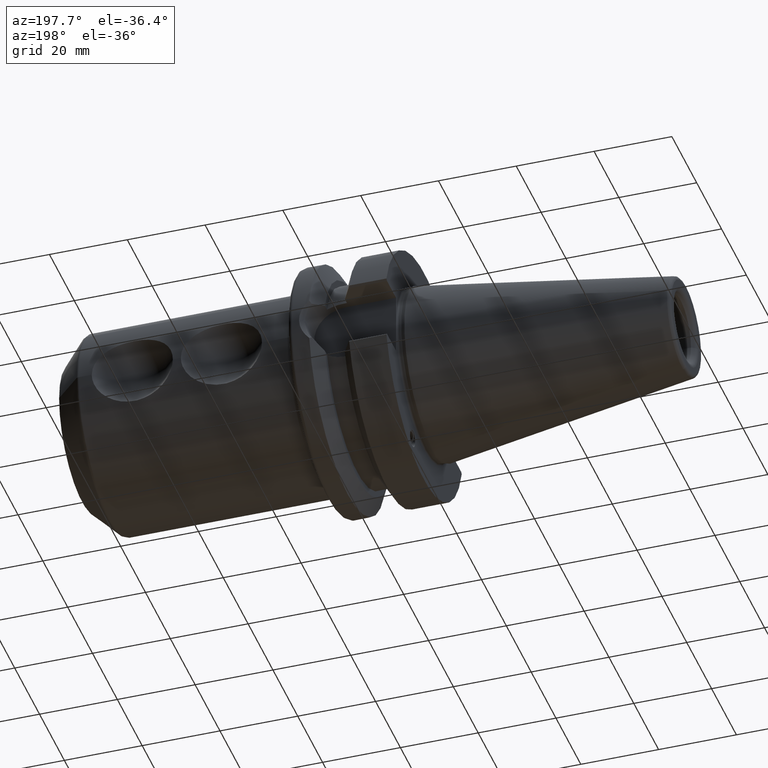
[diagram: clean part render]
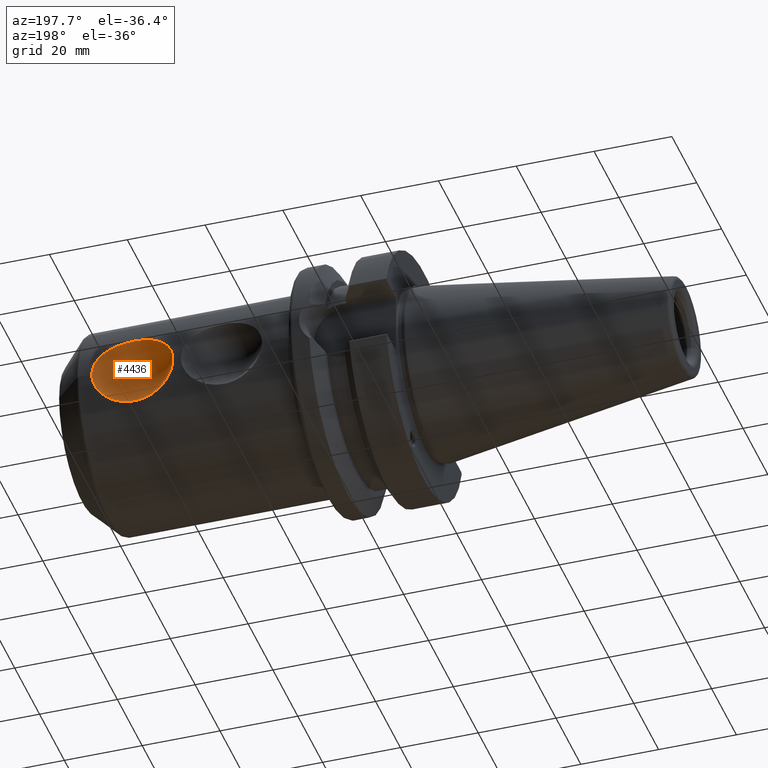
[diagram: same view with one face highlighted and labeled with its STEP entity id]
A machine part, auxiliary view. The second image highlights one B-rep face of the part: STEP entity #4436.
In plain terms, the highlighted spherical surface has radius 12.5 mm.
Its self-contained STEP definition (entity closure, byte-faithful):
#1525=CARTESIAN_POINT('',(7.932305137664E1,2.54E1,0.E0));
#1526=CARTESIAN_POINT('',(7.932305137664E1,2.54E1,4.291994840346E-1));
#1527=CARTESIAN_POINT('',(7.925886135383E1,2.537914594481E1,1.278426753444E0));
#1528=CARTESIAN_POINT('',(7.894039357152E1,2.527796068313E1,2.589278333002E0));
#1529=CARTESIAN_POINT('',(7.846294690833E1,2.513236751058E1,3.730586892767E0));
#1530=CARTESIAN_POINT('',(7.784566709420E1,2.495462107511E1,4.772084219713E0));
#1531=CARTESIAN_POINT('',(7.708606286209E1,2.475203922423E1,5.725855360354E0));
#1532=CARTESIAN_POINT('',(7.619612619666E1,2.453782207751E1,6.578425280208E0));
#1533=CARTESIAN_POINT('',(7.522656414704E1,2.433258404257E1,7.296766963466E0));
#1534=CARTESIAN_POINT('',(7.416055689007E1,2.414010336426E1,7.907697052030E0));
#1535=CARTESIAN_POINT('',(7.296914090590E1,2.396650613039E1,8.416760306265E0));
#1536=CARTESIAN_POINT('',(7.166700360579E1,2.382743880463E1,8.800504581942E0));
#1537=CARTESIAN_POINT('',(7.029414354080E1,2.373840284699E1,9.036380894146E0));
#1538=CARTESIAN_POINT('',(6.890210690173E1,2.370824406082E1,9.114687922228E0));
#1539=CARTESIAN_POINT('',(6.751007991740E1,2.373821884587E1,9.036861101871E0));
#1540=CARTESIAN_POINT('',(6.613686441052E1,2.382710088224E1,8.801414244454E0));
#1541=CARTESIAN_POINT('',(6.483415976585E1,2.396608159112E1,8.417965248429E0));
#1542=CARTESIAN_POINT('',(6.364196479880E1,2.413968338594E1,7.908979715139E0));
#1543=CARTESIAN_POINT('',(6.257518952605E1,2.433223292100E1,7.297944034536E0));
#1544=CARTESIAN_POINT('',(6.160492109037E1,2.453757908705E1,6.579345655177E0));
#1545=CARTESIAN_POINT('',(6.071436771703E1,2.475192536747E1,5.726374864474E0));
#1546=CARTESIAN_POINT('',(5.995431597336E1,2.495462373057E1,4.772102016012E0));
#1547=CARTESIAN_POINT('',(5.933689626105E1,2.513241383883E1,3.730294648311E0));
#1548=CARTESIAN_POINT('',(5.885947838466E1,2.527800081076E1,2.588886259507E0));
#1549=CARTESIAN_POINT('',(5.854110223725E1,2.537915780551E1,1.278129148855E0));
#1550=CARTESIAN_POINT('',(5.847694862336E1,2.54E1,4.290803743597E-1));
#1551=CARTESIAN_POINT('',(5.847694862336E1,2.54E1,0.E0));
#1774=CARTESIAN_POINT('',(5.847694862336E1,2.54E1,0.E0));
#1775=CARTESIAN_POINT('',(5.847694862336E1,2.54E1,-4.332695366930E-1));
#1776=CARTESIAN_POINT('',(5.854277969614E1,2.537861496337E1,-1.295497721368E0));
#1777=CARTESIAN_POINT('',(5.887092960512E1,2.527436596388E1,-2.630366987335E0));
#1778=CARTESIAN_POINT('',(5.938269423400E1,2.511859868992E1,-3.829559534398E0));
#1779=CARTESIAN_POINT('',(6.007603596891E1,2.492033988982E1,-4.955152652970E0));
#1780=CARTESIAN_POINT('',(6.096992442760E1,2.468675253007E1,-6.005913553190E0));
#1781=CARTESIAN_POINT('',(6.202298786916E1,2.444404743565E1,-6.920690995174E0));
#1782=CARTESIAN_POINT('',(6.317539866431E1,2.421809478857E1,-7.668708343778E0));
#1783=CARTESIAN_POINT('',(6.444288385935E1,2.401656194889E1,-8.274754050189E0));
#1784=CARTESIAN_POINT('',(6.584946850583E1,2.385123892831E1,-8.736761535735E0));
#1785=CARTESIAN_POINT('',(6.735240531685E1,2.374331439740E1,-9.023686323535E0));
#1786=CARTESIAN_POINT('',(6.888575483525E1,2.370609662275E1,-9.120231038065E0));
#1787=CARTESIAN_POINT('',(7.041757892092E1,2.374191616109E1,-9.027333329935E0));
#1788=CARTESIAN_POINT('',(7.192015996424E1,2.384836969210E1,-8.744523747973E0));
#1789=CARTESIAN_POINT('',(7.332941162774E1,2.401268416763E1,-8.285942388893E0));
#1790=CARTESIAN_POINT('',(7.460360610974E1,2.421427934297E1,-7.680770238855E0));
#1791=CARTESIAN_POINT('',(7.576452730164E1,2.444129353702E1,-6.930563589569E0));
#1792=CARTESIAN_POINT('',(7.682547450896E1,2.468555468166E1,-6.011168352909E0));
#1793=CARTESIAN_POINT('',(7.772420928437E1,2.492038930979E1,-4.955172664233E0));
#1794=CARTESIAN_POINT('',(7.841769850650E1,2.511872056354E1,-3.828651546454E0));
#1795=CARTESIAN_POINT('',(7.892883797250E1,2.527429424203E1,-2.630918515653E0));
#1796=CARTESIAN_POINT('',(7.925717244272E1,2.537859895003E1,-1.295953416549E0));
#1797=CARTESIAN_POINT('',(7.932305137664E1,2.54E1,-4.334972888293E-1));
#1798=CARTESIAN_POINT('',(7.932305137664E1,2.54E1,0.E0));
#2582=VERTEX_POINT('',#1525);
#2583=VERTEX_POINT('',#1551);
#4427=CARTESIAN_POINT('',(6.89E1,3.23E1,0.E0));
#4428=DIRECTION('',(1.E0,0.E0,0.E0));
#4429=DIRECTION('',(0.E0,1.E0,0.E0));
#4430=AXIS2_PLACEMENT_3D('',#4427,#4428,#4429);
#4431=SPHERICAL_SURFACE('',#4430,1.25E1);
#4432=ORIENTED_EDGE('',*,*,#4225,.T.);
#4433=ORIENTED_EDGE('',*,*,#4083,.T.);
#4434=EDGE_LOOP('',(#4432,#4433));
#4435=FACE_OUTER_BOUND('',#4434,.F.);
#4436=ADVANCED_FACE('',(#4435),#4431,.F.);
#1552=B_SPLINE_CURVE_WITH_KNOTS('',3,(#1525,#1526,#1527,#1528,#1529,#1530,#1531,
#1532,#1533,#1534,#1535,#1536,#1537,#1538,#1539,#1540,#1541,#1542,#1543,#1544,
#1545,#1546,#1547,#1548,#1549,#1550,#1551),.UNSPECIFIED.,.F.,.F.,(4,1,1,1,1,1,1,
1,1,1,1,1,1,1,1,1,1,1,1,1,1,1,1,1,4),(0.E0,4.166666666667E-2,8.333333333333E-2,
1.25E-1,1.666666666667E-1,2.083333333333E-1,2.5E-1,2.916666666667E-1,
3.333333333333E-1,3.75E-1,4.166666666667E-1,4.583333333333E-1,5.E-1,
5.416666666667E-1,5.833333333333E-1,6.25E-1,6.666666666667E-1,7.083333333333E-1,
7.5E-1,7.916666666667E-1,8.333333333333E-1,8.75E-1,9.166666666667E-1,
9.583333333333E-1,1.E0),.UNSPECIFIED.);
#1799=B_SPLINE_CURVE_WITH_KNOTS('',3,(#1774,#1775,#1776,#1777,#1778,#1779,#1780,
#1781,#1782,#1783,#1784,#1785,#1786,#1787,#1788,#1789,#1790,#1791,#1792,#1793,
#1794,#1795,#1796,#1797,#1798),.UNSPECIFIED.,.F.,.F.,(4,1,1,1,1,1,1,1,1,1,1,1,1,
1,1,1,1,1,1,1,1,1,4),(0.E0,4.545454545455E-2,9.090909090909E-2,
1.363636363636E-1,1.818181818182E-1,2.272727272727E-1,2.727272727273E-1,
3.181818181818E-1,3.636363636364E-1,4.090909090909E-1,4.545454545455E-1,5.E-1,
5.454545454545E-1,5.909090909091E-1,6.363636363636E-1,6.818181818182E-1,
7.272727272727E-1,7.727272727273E-1,8.181818181818E-1,8.636363636364E-1,
9.090909090909E-1,9.545454545455E-1,1.E0),.UNSPECIFIED.);
#4083=EDGE_CURVE('',#2582,#2583,#1552,.T.);
#4225=EDGE_CURVE('',#2583,#2582,#1799,.T.);